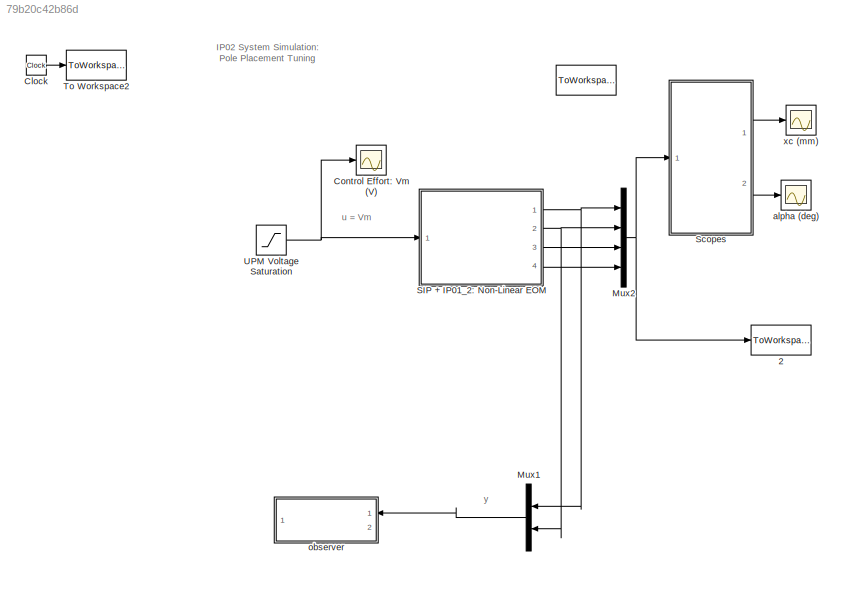
MODEL slx_79b20c42b86d
KIND model
CONFIG AbsTol = 1e-6
CONFIG FixedStep = 0.001
CONFIG MaxStep = auto
CONFIG MinStep = auto
CONFIG RelTol = 1e-3
CONFIG SampleTimeConstraint = Unconstrained
CONFIG Solver = ode4
CONFIG SolverMode = SingleTasking
CONFIG SolverName = ode4
CONFIG StartTime = 0.0
CONFIG StopTime = 40
BLOCK [ToWorkspace]  
  MaxDataPoints = inf
  Ports = [1]
  SampleTime = -1
  VariableName = ref
BLOCK [ToWorkspace]  2
  MaxDataPoints = inf
  Ports = [1]
  SampleTime = -1
  VariableName = x
BLOCK [Clock] Clock
BLOCK [Scope] Control Effort: Vm (V)
  Ports = [1]
  ScopeSpecificationString = C++SS(StrPVP('Location','[7, 56, 784, 588]'),StrPVP('Open','off'),StrPVP('TickLabels','on'),MxPVP('AxesTitles',24,'struct(''axes1'',''%<SignalLabel>'')'),StrPVP('ShowLegends','off'),StrPVP('TimeRange','5'),StrPVP('YMin','-35'),StrPVP('YMax','35'),StrPVP('SaveName','ScopeData2'),StrPVP('LimitDataPoints','off'),StrPVP('BlockParamSampleTime','0'),StrPVP('DataFormat','Array'),StrPVP('Decimation','1'),...<+38ch>
BLOCK [Mux] Mux1
  DisplayOption = bar
  Inputs = 2
  Ports = [2, 1]
BLOCK [Mux] Mux2
  DisplayOption = bar
  Ports = [4, 1]
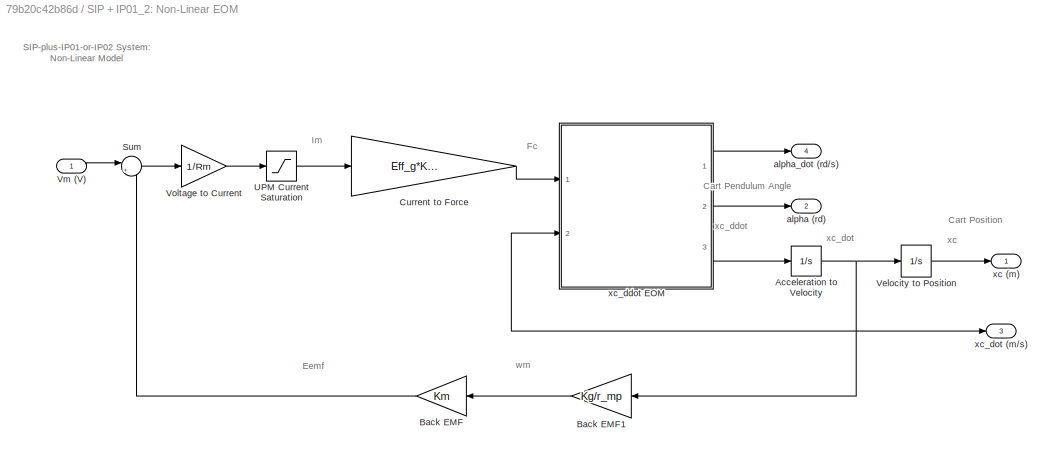
BLOCK [SubSystem] SIP + IP01_2: Non-Linear EOM
  Ports = [1, 4]
  RequestExecContextInheritance = off
  Variant = off
BLOCK [Integrator] SIP + IP01_2: Non-Linear EOM/Acceleration to Velocity
  Ports = [1, 1]
BLOCK [Gain] SIP + IP01_2: Non-Linear EOM/Back EMF
  Gain = Km
BLOCK [Gain] SIP + IP01_2: Non-Linear EOM/Back EMF1
  Gain = Kg/r_mp
BLOCK [Gain] SIP + IP01_2: Non-Linear EOM/Current to Force
  Gain = Eff_g*Kg*Eff_m*Kt/r_mp
BLOCK [Sum] SIP + IP01_2: Non-Linear EOM/Sum
  IconShape = round
  Inputs = |+-
  Ports = [2, 1]
BLOCK [Saturate] SIP + IP01_2: Non-Linear EOM/UPM Current Saturation 
  InputPortMap = u0
  LowerLimit = - IMAX_UPM
  Ports = [1, 1]
  UpperLimit = IMAX_UPM
BLOCK [Integrator] SIP + IP01_2: Non-Linear EOM/Velocity to Position
  Ports = [1, 1]
BLOCK [Inport] SIP + IP01_2: Non-Linear EOM/Vm (V)
  IconDisplay = Port number
BLOCK [Gain] SIP + IP01_2: Non-Linear EOM/Voltage to Current
  Gain = 1/Rm
BLOCK [Outport] SIP + IP01_2: Non-Linear EOM/alpha (rd)
  IconDisplay = Port number
  Port = 2
BLOCK [Outport] SIP + IP01_2: Non-Linear EOM/alpha_dot (rd//s)
  IconDisplay = Port number
  InitialOutput = 0
  Port = 4
BLOCK [Outport] SIP + IP01_2: Non-Linear EOM/xc (m)
  IconDisplay = Port number
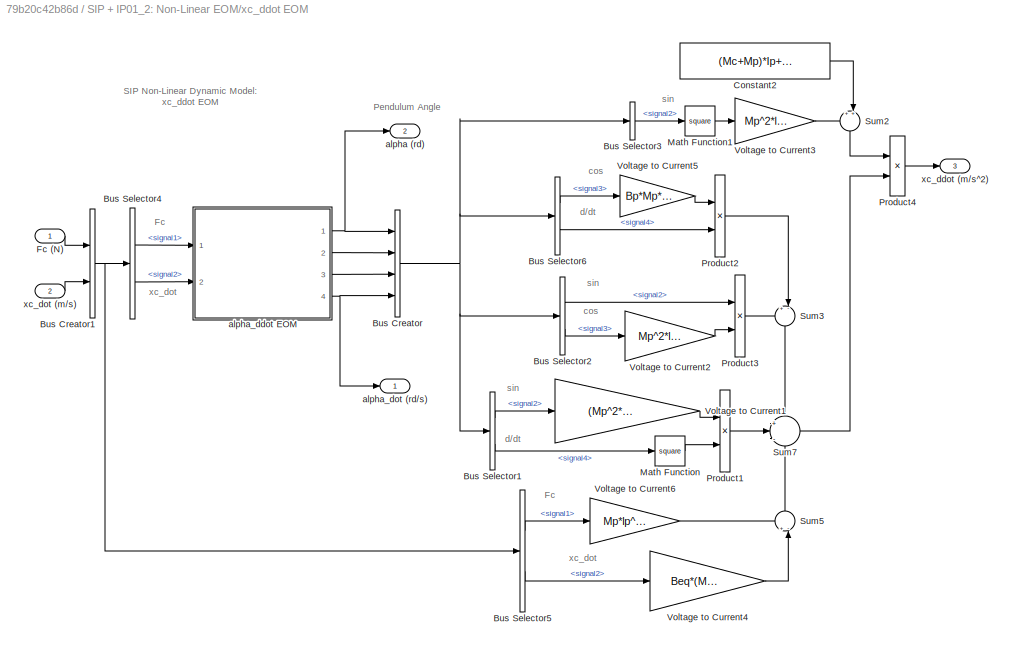
BLOCK [SubSystem] SIP + IP01_2: Non-Linear EOM/xc_ddot EOM
  Ports = [2, 3]
  RequestExecContextInheritance = off
  Variant = off
BLOCK [BusCreator] SIP + IP01_2: Non-Linear EOM/xc_ddot EOM/Bus Creator
  DialogController = Simulink.DDGSource_Bus
  DisplayOption = bar
  InheritFromInputs = on
  Inputs = 4
  Ports = [4, 1]
BLOCK [BusCreator] SIP + IP01_2: Non-Linear EOM/xc_ddot EOM/Bus Creator1
  DialogController = Simulink.DDGSource_Bus
  DisplayOption = bar
  InheritFromInputs = on
  Inputs = 2
  Ports = [2, 1]
BLOCK [BusSelector] SIP + IP01_2: Non-Linear EOM/xc_ddot EOM/Bus Selector1
  DialogController = Simulink.DDGSource_Bus
  OutputSignals = signal2,signal4
  Ports = [1, 2]
BLOCK [BusSelector] SIP + IP01_2: Non-Linear EOM/xc_ddot EOM/Bus Selector2
  DialogController = Simulink.DDGSource_Bus
  OutputSignals = signal2,signal3
  Ports = [1, 2]
BLOCK [BusSelector] SIP + IP01_2: Non-Linear EOM/xc_ddot EOM/Bus Selector3
  DialogController = Simulink.DDGSource_Bus
  OutputSignals = signal2
  Ports = [1, 1]
BLOCK [BusSelector] SIP + IP01_2: Non-Linear EOM/xc_ddot EOM/Bus Selector4
  DialogController = Simulink.DDGSource_Bus
  OutputSignals = signal1,signal2
  Ports = [1, 2]
BLOCK [BusSelector] SIP + IP01_2: Non-Linear EOM/xc_ddot EOM/Bus Selector5
  DialogController = Simulink.DDGSource_Bus
  OutputSignals = signal1,signal2
  Ports = [1, 2]
BLOCK [BusSelector] SIP + IP01_2: Non-Linear EOM/xc_ddot EOM/Bus Selector6
  DialogController = Simulink.DDGSource_Bus
  OutputSignals = signal3,signal4
  Ports = [1, 2]
BLOCK [Constant] SIP + IP01_2: Non-Linear EOM/xc_ddot EOM/Constant2
  Value = (Mc+Mp)*Ip+Mc*Mp*lp^2
BLOCK [Inport] SIP + IP01_2: Non-Linear EOM/xc_ddot EOM/Fc (N)
  IconDisplay = Port number
BLOCK [Math] SIP + IP01_2: Non-Linear EOM/xc_ddot EOM/Math Function
  Operator = square
  Ports = [1, 1]
BLOCK [Math] SIP + IP01_2: Non-Linear EOM/xc_ddot EOM/Math Function1
  Operator = square
  Ports = [1, 1]
BLOCK [Product] SIP + IP01_2: Non-Linear EOM/xc_ddot EOM/Product1
  Ports = [2, 1]
BLOCK [Product] SIP + IP01_2: Non-Linear EOM/xc_ddot EOM/Product2
  Ports = [2, 1]
BLOCK [Product] SIP + IP01_2: Non-Linear EOM/xc_ddot EOM/Product3
  Ports = [2, 1]
BLOCK [Product] SIP + IP01_2: Non-Linear EOM/xc_ddot EOM/Product4
  Inputs = /*
  Ports = [2, 1]
BLOCK [Sum] SIP + IP01_2: Non-Linear EOM/xc_ddot EOM/Sum2
  IconShape = round
  Inputs = ++|
  Ports = [2, 1]
BLOCK [Sum] SIP + IP01_2: Non-Linear EOM/xc_ddot EOM/Sum3
  IconShape = round
  Inputs = +-|
  Ports = [2, 1]
BLOCK [Sum] SIP + IP01_2: Non-Linear EOM/xc_ddot EOM/Sum5
  IconShape = round
  Inputs = +-|
  Ports = [2, 1]
BLOCK [Sum] SIP + IP01_2: Non-Linear EOM/xc_ddot EOM/Sum7
  IconShape = round
  Inputs = +|-|+
  Ports = [3, 1]
BLOCK [Gain] SIP + IP01_2: Non-Linear EOM/xc_ddot EOM/Voltage to Current1
  Gain = (Mp^2*lp^3+Ip*Mp*lp)
BLOCK [Gain] SIP + IP01_2: Non-Linear EOM/xc_ddot EOM/Voltage to Current2
  Gain = Mp^2*lp^2*g
BLOCK [Gain] SIP + IP01_2: Non-Linear EOM/xc_ddot EOM/Voltage to Current3
  Gain = Mp^2*lp^2
BLOCK [Gain] SIP + IP01_2: Non-Linear EOM/xc_ddot EOM/Voltage to Current4
  Gain = Beq*(Mp*lp^2+Ip)
BLOCK [Gain] SIP + IP01_2: Non-Linear EOM/xc_ddot EOM/Voltage to Current5
  Gain = Bp*Mp*lp
BLOCK [Gain] SIP + IP01_2: Non-Linear EOM/xc_ddot EOM/Voltage to Current6
  Gain = Mp*lp^2+Ip
BLOCK [Outport] SIP + IP01_2: Non-Linear EOM/xc_ddot EOM/alpha (rd)
  IconDisplay = Port number
  Port = 2
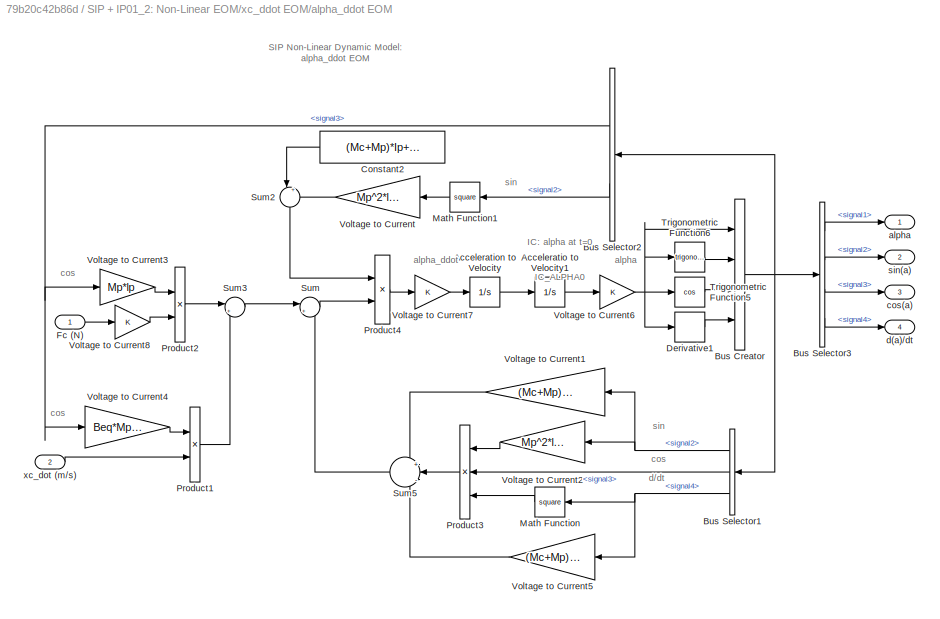
BLOCK [SubSystem] SIP + IP01_2: Non-Linear EOM/xc_ddot EOM/alpha_ddot EOM
  Ports = [2, 4]
  RequestExecContextInheritance = off
  Variant = off
BLOCK [Integrator] SIP + IP01_2: Non-Linear EOM/xc_ddot EOM/alpha_ddot EOM/Acceleratio to Velocity1
  InitialCondition = theta0
  Ports = [1, 1]
BLOCK [Integrator] SIP + IP01_2: Non-Linear EOM/xc_ddot EOM/alpha_ddot EOM/Acceleration to Velocity
  Ports = [1, 1]
BLOCK [BusCreator] SIP + IP01_2: Non-Linear EOM/xc_ddot EOM/alpha_ddot EOM/Bus Creator
  DialogController = Simulink.DDGSource_Bus
  DisplayOption = bar
  InheritFromInputs = on
  Inputs = 4
  Ports = [4, 1]
BLOCK [BusSelector] SIP + IP01_2: Non-Linear EOM/xc_ddot EOM/alpha_ddot EOM/Bus Selector1
  DialogController = Simulink.DDGSource_Bus
  OutputSignals = signal2,signal3,signal4
  Ports = [1, 3]
BLOCK [BusSelector] SIP + IP01_2: Non-Linear EOM/xc_ddot EOM/alpha_ddot EOM/Bus Selector2
  DialogController = Simulink.DDGSource_Bus
  OutputSignals = signal3,signal2
  Ports = [1, 2]
BLOCK [BusSelector] SIP + IP01_2: Non-Linear EOM/xc_ddot EOM/alpha_ddot EOM/Bus Selector3
  DialogController = Simulink.DDGSource_Bus
  OutputSignals = signal1,signal2,signal3,signal4
  Ports = [1, 4]
BLOCK [Constant] SIP + IP01_2: Non-Linear EOM/xc_ddot EOM/alpha_ddot EOM/Constant2
  Value = (Mc+Mp)*Ip+Mc*Mp*lp^2
BLOCK [Derivative] SIP + IP01_2: Non-Linear EOM/xc_ddot EOM/alpha_ddot EOM/Derivative1
BLOCK [Inport] SIP + IP01_2: Non-Linear EOM/xc_ddot EOM/alpha_ddot EOM/Fc (N)
  IconDisplay = Port number
BLOCK [Math] SIP + IP01_2: Non-Linear EOM/xc_ddot EOM/alpha_ddot EOM/Math Function
  Operator = square
  Ports = [1, 1]
BLOCK [Math] SIP + IP01_2: Non-Linear EOM/xc_ddot EOM/alpha_ddot EOM/Math Function1
  Operator = square
  Ports = [1, 1]
BLOCK [Product] SIP + IP01_2: Non-Linear EOM/xc_ddot EOM/alpha_ddot EOM/Product1
  Ports = [2, 1]
BLOCK [Product] SIP + IP01_2: Non-Linear EOM/xc_ddot EOM/alpha_ddot EOM/Product2
  Ports = [2, 1]
BLOCK [Product] SIP + IP01_2: Non-Linear EOM/xc_ddot EOM/alpha_ddot EOM/Product3
  Inputs = 3
  Ports = [3, 1]
BLOCK [Product] SIP + IP01_2: Non-Linear EOM/xc_ddot EOM/alpha_ddot EOM/Product4
  Inputs = /*
  Ports = [2, 1]
BLOCK [Sum] SIP + IP01_2: Non-Linear EOM/xc_ddot EOM/alpha_ddot EOM/Sum
  IconShape = round
  Inputs = |++
  Ports = [2, 1]
BLOCK [Sum] SIP + IP01_2: Non-Linear EOM/xc_ddot EOM/alpha_ddot EOM/Sum2
  IconShape = round
  Inputs = |++
  Ports = [2, 1]
BLOCK [Sum] SIP + IP01_2: Non-Linear EOM/xc_ddot EOM/alpha_ddot EOM/Sum3
  IconShape = round
  Inputs = |+-
  Ports = [2, 1]
BLOCK [Sum] SIP + IP01_2: Non-Linear EOM/xc_ddot EOM/alpha_ddot EOM/Sum5
  IconShape = round
  Inputs = +|-|-
  Ports = [3, 1]
BLOCK [Trigonometry] SIP + IP01_2: Non-Linear EOM/xc_ddot EOM/alpha_ddot EOM/Trigonometric Function5
  Operator = cos
  Ports = [1, 1]
BLOCK [Trigonometry] SIP + IP01_2: Non-Linear EOM/xc_ddot EOM/alpha_ddot EOM/Trigonometric Function6
  Ports = [1, 1]
BLOCK [Gain] SIP + IP01_2: Non-Linear EOM/xc_ddot EOM/alpha_ddot EOM/Voltage to Current
  Gain = Mp^2*lp^2
BLOCK [Gain] SIP + IP01_2: Non-Linear EOM/xc_ddot EOM/alpha_ddot EOM/Voltage to Current1
  Gain = (Mc+Mp)*Mp*lp*g
BLOCK [Gain] SIP + IP01_2: Non-Linear EOM/xc_ddot EOM/alpha_ddot EOM/Voltage to Current2
  Gain = Mp^2*lp^2
BLOCK [Gain] SIP + IP01_2: Non-Linear EOM/xc_ddot EOM/alpha_ddot EOM/Voltage to Current3
  Gain = Mp*lp
BLOCK [Gain] SIP + IP01_2: Non-Linear EOM/xc_ddot EOM/alpha_ddot EOM/Voltage to Current4
  Gain = Beq*Mp*lp
BLOCK [Gain] SIP + IP01_2: Non-Linear EOM/xc_ddot EOM/alpha_ddot EOM/Voltage to Current5
  Gain = (Mc+Mp)*Bp
BLOCK [Gain] SIP + IP01_2: Non-Linear EOM/xc_ddot EOM/alpha_ddot EOM/Voltage to Current6
BLOCK [Gain] SIP + IP01_2: Non-Linear EOM/xc_ddot EOM/alpha_ddot EOM/Voltage to Current7
BLOCK [Gain] SIP + IP01_2: Non-Linear EOM/xc_ddot EOM/alpha_ddot EOM/Voltage to Current8
BLOCK [Outport] SIP + IP01_2: Non-Linear EOM/xc_ddot EOM/alpha_ddot EOM/alpha
  IconDisplay = Port number
  InitialOutput = 0
BLOCK [Outport] SIP + IP01_2: Non-Linear EOM/xc_ddot EOM/alpha_ddot EOM/cos(a)
  IconDisplay = Port number
  InitialOutput = 0
  Port = 3
BLOCK [Outport] SIP + IP01_2: Non-Linear EOM/xc_ddot EOM/alpha_ddot EOM/d(a)//dt
  IconDisplay = Port number
  InitialOutput = 0
  Port = 4
BLOCK [Outport] SIP + IP01_2: Non-Linear EOM/xc_ddot EOM/alpha_ddot EOM/sin(a)
  IconDisplay = Port number
  InitialOutput = 0
  Port = 2
BLOCK [Inport] SIP + IP01_2: Non-Linear EOM/xc_ddot EOM/alpha_ddot EOM/xc_dot (m//s)
  IconDisplay = Port number
  Port = 2
BLOCK [Outport] SIP + IP01_2: Non-Linear EOM/xc_ddot EOM/alpha_dot (rd//s)
  IconDisplay = Port number
BLOCK [Outport] SIP + IP01_2: Non-Linear EOM/xc_ddot EOM/xc_ddot (m//s^2)
  IconDisplay = Port number
  Port = 3
BLOCK [Inport] SIP + IP01_2: Non-Linear EOM/xc_ddot EOM/xc_dot (m//s)
  IconDisplay = Port number
  Port = 2
BLOCK [Outport] SIP + IP01_2: Non-Linear EOM/xc_dot (m//s)
  IconDisplay = Port number
  InitialOutput = 0
  Port = 3
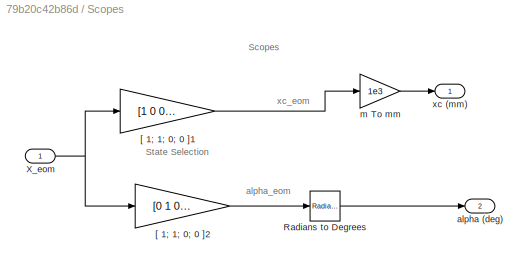
BLOCK [SubSystem] Scopes
  Ports = [1, 2]
  RequestExecContextInheritance = off
  Variant = off
BLOCK [Reference] Scopes/Radians to Degrees  REF=simulink_extras/Transformations/Radians
to Degrees
  Ports = [1, 1]
  SourceBlock = simulink_extras/Transformations/Radians\nto Degrees
  SourceType = RadiansToDegrees
BLOCK [Inport] Scopes/X_eom
  IconDisplay = Port number
BLOCK [Gain] Scopes/[ 1; 1; 0; 0 ]1
  Gain = [1 0 0 0]
  Multiplication = Matrix(K*u)
BLOCK [Gain] Scopes/[ 1; 1; 0; 0 ]2
  Gain = [0 1 0 0]
  Multiplication = Matrix(K*u)
BLOCK [Outport] Scopes/alpha (deg)
  IconDisplay = Port number
  Port = 2
BLOCK [Gain] Scopes/m To mm
  Gain = 1e3
BLOCK [Outport] Scopes/xc (mm)
  IconDisplay = Port number
BLOCK [ToWorkspace] To Workspace2
  MaxDataPoints = inf
  Ports = [1]
  SampleTime = -1
  VariableName = t
BLOCK [Saturate] UPM Voltage Saturation
  InputPortMap = u0
  LowerLimit = - VMAX_UPM
  Ports = [1, 1]
  UpperLimit = VMAX_UPM
BLOCK [Scope] alpha (deg)
  Ports = [1]
  ScopeSpecificationString = C++SS(StrPVP('Location','[112, 210, 889, 742]'),StrPVP('Open','off'),StrPVP('TickLabels','on'),StrPVP('ZoomMode','xonly'),MxPVP('AxesTitles',24,'struct(''axes1'',''%<SignalLabel>'')'),StrPVP('ShowLegends','off'),StrPVP('TimeRange','5'),StrPVP('YMin','-1'),StrPVP('YMax','1'),StrPVP('SaveName','ScopeData4'),StrPVP('LimitDataPoints','off'),StrPVP('BlockParamSampleTime','0'),StrPVP('DataFormat','Array...<+66ch>
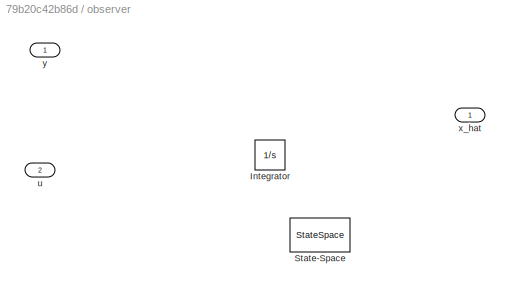
BLOCK [SubSystem] observer
  Ports = [2, 1]
  RequestExecContextInheritance = off
  Variant = off
BLOCK [Integrator] observer/Integrator
  Ports = [1, 1]
BLOCK [StateSpace] observer/State-Space
  Ports = [1, 1]
  X0 = 0
BLOCK [Inport] observer/u
  IconDisplay = Port number
  Port = 2
BLOCK [Outport] observer/x_hat
  IconDisplay = Port number
BLOCK [Inport] observer/y
  IconDisplay = Port number
BLOCK [Scope] xc (mm)
  Ports = [1]
  ScopeSpecificationString = C++SS(StrPVP('Location','[51, 126, 828, 658]'),StrPVP('Open','off'),StrPVP('TickLabels','on'),StrPVP('ZoomMode','yonly'),MxPVP('AxesTitles',24,'struct(''axes1'',''%<SignalLabel>'')'),StrPVP('ShowLegends','off'),StrPVP('TimeRange','5'),StrPVP('YMin','-125'),StrPVP('YMax','150'),StrPVP('SaveName','ScopeData3'),StrPVP('LimitDataPoints','off'),StrPVP('BlockParamSampleTime','0'),StrPVP('DataFormat','Ar...<+69ch>
ANNOTATION (root): IP02 System Simulation: Pole Placement Tuning
ANNOTATION (root): u = Vm
ANNOTATION (root): y
ANNOTATION SIP + IP01_2: Non-Linear EOM: Cart Pendulum Angle
ANNOTATION SIP + IP01_2: Non-Linear EOM: Cart Position
ANNOTATION SIP + IP01_2: Non-Linear EOM: Eemf
ANNOTATION SIP + IP01_2: Non-Linear EOM: Fc
ANNOTATION SIP + IP01_2: Non-Linear EOM: Im
ANNOTATION SIP + IP01_2: Non-Linear EOM: SIP-plus-IP01-or-IP02 System: Non-Linear Model
ANNOTATION SIP + IP01_2: Non-Linear EOM: wm
ANNOTATION SIP + IP01_2: Non-Linear EOM: xc
ANNOTATION SIP + IP01_2: Non-Linear EOM: xc_ddot
ANNOTATION SIP + IP01_2: Non-Linear EOM: xc_dot
ANNOTATION SIP + IP01_2: Non-Linear EOM/xc_ddot EOM: Fc
ANNOTATION SIP + IP01_2: Non-Linear EOM/xc_ddot EOM: Pendulum Angle
ANNOTATION SIP + IP01_2: Non-Linear EOM/xc_ddot EOM: SIP Non-Linear Dynamic Model: xc_ddot EOM
ANNOTATION SIP + IP01_2: Non-Linear EOM/xc_ddot EOM: cos
ANNOTATION SIP + IP01_2: Non-Linear EOM/xc_ddot EOM: d/dt
ANNOTATION SIP + IP01_2: Non-Linear EOM/xc_ddot EOM: sin
ANNOTATION SIP + IP01_2: Non-Linear EOM/xc_ddot EOM: xc_dot
ANNOTATION SIP + IP01_2: Non-Linear EOM/xc_ddot EOM/alpha_ddot EOM: IC: alpha at t=0 IC_ALPHA0
ANNOTATION SIP + IP01_2: Non-Linear EOM/xc_ddot EOM/alpha_ddot EOM: SIP Non-Linear Dynamic Model: alpha_ddot EOM
ANNOTATION SIP + IP01_2: Non-Linear EOM/xc_ddot EOM/alpha_ddot EOM: alpha
ANNOTATION SIP + IP01_2: Non-Linear EOM/xc_ddot EOM/alpha_ddot EOM: alpha_ddot
ANNOTATION SIP + IP01_2: Non-Linear EOM/xc_ddot EOM/alpha_ddot EOM: cos
ANNOTATION SIP + IP01_2: Non-Linear EOM/xc_ddot EOM/alpha_ddot EOM: d/dt
ANNOTATION SIP + IP01_2: Non-Linear EOM/xc_ddot EOM/alpha_ddot EOM: sin
ANNOTATION Scopes: Scopes
ANNOTATION Scopes: State Selection
ANNOTATION Scopes: alpha_eom
ANNOTATION Scopes: xc_eom
LINE Clock:1 -> To Workspace2:1
LINE Mux1:1 -> observer:1
NET Mux2:1 ->  2:1, Scopes:1
NET SIP + IP01_2: Non-Linear EOM/Acceleration to Velocity:1 -> SIP + IP01_2: Non-Linear EOM/Back EMF1:1, SIP + IP01_2: Non-Linear EOM/Velocity to Position:1, SIP + IP01_2: Non-Linear EOM/xc_ddot EOM:2, SIP + IP01_2: Non-Linear EOM/xc_dot (m//s):1
LINE SIP + IP01_2: Non-Linear EOM/Back EMF1:1 -> SIP + IP01_2: Non-Linear EOM/Back EMF:1
LINE SIP + IP01_2: Non-Linear EOM/Back EMF:1 -> SIP + IP01_2: Non-Linear EOM/Sum:2
LINE SIP + IP01_2: Non-Linear EOM/Current to Force:1 -> SIP + IP01_2: Non-Linear EOM/xc_ddot EOM:1
LINE SIP + IP01_2: Non-Linear EOM/Sum:1 -> SIP + IP01_2: Non-Linear EOM/Voltage to Current:1
LINE SIP + IP01_2: Non-Linear EOM/UPM Current Saturation :1 -> SIP + IP01_2: Non-Linear EOM/Current to Force:1
LINE SIP + IP01_2: Non-Linear EOM/Velocity to Position:1 -> SIP + IP01_2: Non-Linear EOM/xc (m):1
LINE SIP + IP01_2: Non-Linear EOM/Vm (V):1 -> SIP + IP01_2: Non-Linear EOM/Sum:1
LINE SIP + IP01_2: Non-Linear EOM/Voltage to Current:1 -> SIP + IP01_2: Non-Linear EOM/UPM Current Saturation :1
NET SIP + IP01_2: Non-Linear EOM/xc_ddot EOM/Bus Creator1:1 -> SIP + IP01_2: Non-Linear EOM/xc_ddot EOM/Bus Selector4:1, SIP + IP01_2: Non-Linear EOM/xc_ddot EOM/Bus Selector5:1
NET SIP + IP01_2: Non-Linear EOM/xc_ddot EOM/Bus Creator:1 -> SIP + IP01_2: Non-Linear EOM/xc_ddot EOM/Bus Selector1:1, SIP + IP01_2: Non-Linear EOM/xc_ddot EOM/Bus Selector2:1, SIP + IP01_2: Non-Linear EOM/xc_ddot EOM/Bus Selector3:1, SIP + IP01_2: Non-Linear EOM/xc_ddot EOM/Bus Selector6:1
LINE SIP + IP01_2: Non-Linear EOM/xc_ddot EOM/Bus Selector1:1 -> SIP + IP01_2: Non-Linear EOM/xc_ddot EOM/Voltage to Current1:1
LINE SIP + IP01_2: Non-Linear EOM/xc_ddot EOM/Bus Selector1:2 -> SIP + IP01_2: Non-Linear EOM/xc_ddot EOM/Math Function:1
LINE SIP + IP01_2: Non-Linear EOM/xc_ddot EOM/Bus Selector2:1 -> SIP + IP01_2: Non-Linear EOM/xc_ddot EOM/Product3:1
LINE SIP + IP01_2: Non-Linear EOM/xc_ddot EOM/Bus Selector2:2 -> SIP + IP01_2: Non-Linear EOM/xc_ddot EOM/Voltage to Current2:1
LINE SIP + IP01_2: Non-Linear EOM/xc_ddot EOM/Bus Selector3:1 -> SIP + IP01_2: Non-Linear EOM/xc_ddot EOM/Math Function1:1
LINE SIP + IP01_2: Non-Linear EOM/xc_ddot EOM/Bus Selector4:1 -> SIP + IP01_2: Non-Linear EOM/xc_ddot EOM/alpha_ddot EOM:1
LINE SIP + IP01_2: Non-Linear EOM/xc_ddot EOM/Bus Selector4:2 -> SIP + IP01_2: Non-Linear EOM/xc_ddot EOM/alpha_ddot EOM:2
LINE SIP + IP01_2: Non-Linear EOM/xc_ddot EOM/Bus Selector5:1 -> SIP + IP01_2: Non-Linear EOM/xc_ddot EOM/Voltage to Current6:1
LINE SIP + IP01_2: Non-Linear EOM/xc_ddot EOM/Bus Selector5:2 -> SIP + IP01_2: Non-Linear EOM/xc_ddot EOM/Voltage to Current4:1
LINE SIP + IP01_2: Non-Linear EOM/xc_ddot EOM/Bus Selector6:1 -> SIP + IP01_2: Non-Linear EOM/xc_ddot EOM/Voltage to Current5:1
LINE SIP + IP01_2: Non-Linear EOM/xc_ddot EOM/Bus Selector6:2 -> SIP + IP01_2: Non-Linear EOM/xc_ddot EOM/Product2:2
LINE SIP + IP01_2: Non-Linear EOM/xc_ddot EOM/Constant2:1 -> SIP + IP01_2: Non-Linear EOM/xc_ddot EOM/Sum2:2
LINE SIP + IP01_2: Non-Linear EOM/xc_ddot EOM/Fc (N):1 -> SIP + IP01_2: Non-Linear EOM/xc_ddot EOM/Bus Creator1:1
LINE SIP + IP01_2: Non-Linear EOM/xc_ddot EOM/Math Function1:1 -> SIP + IP01_2: Non-Linear EOM/xc_ddot EOM/Voltage to Current3:1
LINE SIP + IP01_2: Non-Linear EOM/xc_ddot EOM/Math Function:1 -> SIP + IP01_2: Non-Linear EOM/xc_ddot EOM/Product1:2
LINE SIP + IP01_2: Non-Linear EOM/xc_ddot EOM/Product1:1 -> SIP + IP01_2: Non-Linear EOM/xc_ddot EOM/Sum7:2
LINE SIP + IP01_2: Non-Linear EOM/xc_ddot EOM/Product2:1 -> SIP + IP01_2: Non-Linear EOM/xc_ddot EOM/Sum3:2
LINE SIP + IP01_2: Non-Linear EOM/xc_ddot EOM/Product3:1 -> SIP + IP01_2: Non-Linear EOM/xc_ddot EOM/Sum3:1
LINE SIP + IP01_2: Non-Linear EOM/xc_ddot EOM/Product4:1 -> SIP + IP01_2: Non-Linear EOM/xc_ddot EOM/xc_ddot (m//s^2):1
LINE SIP + IP01_2: Non-Linear EOM/xc_ddot EOM/Sum2:1 -> SIP + IP01_2: Non-Linear EOM/xc_ddot EOM/Product4:1
LINE SIP + IP01_2: Non-Linear EOM/xc_ddot EOM/Sum3:1 -> SIP + IP01_2: Non-Linear EOM/xc_ddot EOM/Sum7:1
LINE SIP + IP01_2: Non-Linear EOM/xc_ddot EOM/Sum5:1 -> SIP + IP01_2: Non-Linear EOM/xc_ddot EOM/Sum7:3
LINE SIP + IP01_2: Non-Linear EOM/xc_ddot EOM/Sum7:1 -> SIP + IP01_2: Non-Linear EOM/xc_ddot EOM/Product4:2
LINE SIP + IP01_2: Non-Linear EOM/xc_ddot EOM/Voltage to Current1:1 -> SIP + IP01_2: Non-Linear EOM/xc_ddot EOM/Product1:1
LINE SIP + IP01_2: Non-Linear EOM/xc_ddot EOM/Voltage to Current2:1 -> SIP + IP01_2: Non-Linear EOM/xc_ddot EOM/Product3:2
LINE SIP + IP01_2: Non-Linear EOM/xc_ddot EOM/Voltage to Current3:1 -> SIP + IP01_2: Non-Linear EOM/xc_ddot EOM/Sum2:1
LINE SIP + IP01_2: Non-Linear EOM/xc_ddot EOM/Voltage to Current4:1 -> SIP + IP01_2: Non-Linear EOM/xc_ddot EOM/Sum5:2
LINE SIP + IP01_2: Non-Linear EOM/xc_ddot EOM/Voltage to Current5:1 -> SIP + IP01_2: Non-Linear EOM/xc_ddot EOM/Product2:1
LINE SIP + IP01_2: Non-Linear EOM/xc_ddot EOM/Voltage to Current6:1 -> SIP + IP01_2: Non-Linear EOM/xc_ddot EOM/Sum5:1
LINE SIP + IP01_2: Non-Linear EOM/xc_ddot EOM/alpha_ddot EOM/Acceleratio to Velocity1:1 -> SIP + IP01_2: Non-Linear EOM/xc_ddot EOM/alpha_ddot EOM/Voltage to Current6:1
LINE SIP + IP01_2: Non-Linear EOM/xc_ddot EOM/alpha_ddot EOM/Acceleration to Velocity:1 -> SIP + IP01_2: Non-Linear EOM/xc_ddot EOM/alpha_ddot EOM/Acceleratio to Velocity1:1
NET SIP + IP01_2: Non-Linear EOM/xc_ddot EOM/alpha_ddot EOM/Bus Creator:1 -> SIP + IP01_2: Non-Linear EOM/xc_ddot EOM/alpha_ddot EOM/Bus Selector1:1, SIP + IP01_2: Non-Linear EOM/xc_ddot EOM/alpha_ddot EOM/Bus Selector2:1, SIP + IP01_2: Non-Linear EOM/xc_ddot EOM/alpha_ddot EOM/Bus Selector3:1
NET SIP + IP01_2: Non-Linear EOM/xc_ddot EOM/alpha_ddot EOM/Bus Selector1:1 -> SIP + IP01_2: Non-Linear EOM/xc_ddot EOM/alpha_ddot EOM/Voltage to Current1:1, SIP + IP01_2: Non-Linear EOM/xc_ddot EOM/alpha_ddot EOM/Voltage to Current2:1
LINE SIP + IP01_2: Non-Linear EOM/xc_ddot EOM/alpha_ddot EOM/Bus Selector1:2 -> SIP + IP01_2: Non-Linear EOM/xc_ddot EOM/alpha_ddot EOM/Product3:2
NET SIP + IP01_2: Non-Linear EOM/xc_ddot EOM/alpha_ddot EOM/Bus Selector1:3 -> SIP + IP01_2: Non-Linear EOM/xc_ddot EOM/alpha_ddot EOM/Math Function:1, SIP + IP01_2: Non-Linear EOM/xc_ddot EOM/alpha_ddot EOM/Voltage to Current5:1
NET SIP + IP01_2: Non-Linear EOM/xc_ddot EOM/alpha_ddot EOM/Bus Selector2:1 -> SIP + IP01_2: Non-Linear EOM/xc_ddot EOM/alpha_ddot EOM/Voltage to Current3:1, SIP + IP01_2: Non-Linear EOM/xc_ddot EOM/alpha_ddot EOM/Voltage to Current4:1
LINE SIP + IP01_2: Non-Linear EOM/xc_ddot EOM/alpha_ddot EOM/Bus Selector2:2 -> SIP + IP01_2: Non-Linear EOM/xc_ddot EOM/alpha_ddot EOM/Math Function1:1
LINE SIP + IP01_2: Non-Linear EOM/xc_ddot EOM/alpha_ddot EOM/Bus Selector3:1 -> SIP + IP01_2: Non-Linear EOM/xc_ddot EOM/alpha_ddot EOM/alpha:1
LINE SIP + IP01_2: Non-Linear EOM/xc_ddot EOM/alpha_ddot EOM/Bus Selector3:2 -> SIP + IP01_2: Non-Linear EOM/xc_ddot EOM/alpha_ddot EOM/sin(a):1
LINE SIP + IP01_2: Non-Linear EOM/xc_ddot EOM/alpha_ddot EOM/Bus Selector3:3 -> SIP + IP01_2: Non-Linear EOM/xc_ddot EOM/alpha_ddot EOM/cos(a):1
LINE SIP + IP01_2: Non-Linear EOM/xc_ddot EOM/alpha_ddot EOM/Bus Selector3:4 -> SIP + IP01_2: Non-Linear EOM/xc_ddot EOM/alpha_ddot EOM/d(a)//dt:1
LINE SIP + IP01_2: Non-Linear EOM/xc_ddot EOM/alpha_ddot EOM/Constant2:1 -> SIP + IP01_2: Non-Linear EOM/xc_ddot EOM/alpha_ddot EOM/Sum2:1
LINE SIP + IP01_2: Non-Linear EOM/xc_ddot EOM/alpha_ddot EOM/Derivative1:1 -> SIP + IP01_2: Non-Linear EOM/xc_ddot EOM/alpha_ddot EOM/Bus Creator:4
LINE SIP + IP01_2: Non-Linear EOM/xc_ddot EOM/alpha_ddot EOM/Fc (N):1 -> SIP + IP01_2: Non-Linear EOM/xc_ddot EOM/alpha_ddot EOM/Voltage to Current8:1
LINE SIP + IP01_2: Non-Linear EOM/xc_ddot EOM/alpha_ddot EOM/Math Function1:1 -> SIP + IP01_2: Non-Linear EOM/xc_ddot EOM/alpha_ddot EOM/Voltage to Current:1
LINE SIP + IP01_2: Non-Linear EOM/xc_ddot EOM/alpha_ddot EOM/Math Function:1 -> SIP + IP01_2: Non-Linear EOM/xc_ddot EOM/alpha_ddot EOM/Product3:3
LINE SIP + IP01_2: Non-Linear EOM/xc_ddot EOM/alpha_ddot EOM/Product1:1 -> SIP + IP01_2: Non-Linear EOM/xc_ddot EOM/alpha_ddot EOM/Sum3:2
LINE SIP + IP01_2: Non-Linear EOM/xc_ddot EOM/alpha_ddot EOM/Product2:1 -> SIP + IP01_2: Non-Linear EOM/xc_ddot EOM/alpha_ddot EOM/Sum3:1
LINE SIP + IP01_2: Non-Linear EOM/xc_ddot EOM/alpha_ddot EOM/Product3:1 -> SIP + IP01_2: Non-Linear EOM/xc_ddot EOM/alpha_ddot EOM/Sum5:2
LINE SIP + IP01_2: Non-Linear EOM/xc_ddot EOM/alpha_ddot EOM/Product4:1 -> SIP + IP01_2: Non-Linear EOM/xc_ddot EOM/alpha_ddot EOM/Voltage to Current7:1
LINE SIP + IP01_2: Non-Linear EOM/xc_ddot EOM/alpha_ddot EOM/Sum2:1 -> SIP + IP01_2: Non-Linear EOM/xc_ddot EOM/alpha_ddot EOM/Product4:1
LINE SIP + IP01_2: Non-Linear EOM/xc_ddot EOM/alpha_ddot EOM/Sum3:1 -> SIP + IP01_2: Non-Linear EOM/xc_ddot EOM/alpha_ddot EOM/Sum:1
LINE SIP + IP01_2: Non-Linear EOM/xc_ddot EOM/alpha_ddot EOM/Sum5:1 -> SIP + IP01_2: Non-Linear EOM/xc_ddot EOM/alpha_ddot EOM/Sum:2
LINE SIP + IP01_2: Non-Linear EOM/xc_ddot EOM/alpha_ddot EOM/Sum:1 -> SIP + IP01_2: Non-Linear EOM/xc_ddot EOM/alpha_ddot EOM/Product4:2
LINE SIP + IP01_2: Non-Linear EOM/xc_ddot EOM/alpha_ddot EOM/Trigonometric Function5:1 -> SIP + IP01_2: Non-Linear EOM/xc_ddot EOM/alpha_ddot EOM/Bus Creator:3
LINE SIP + IP01_2: Non-Linear EOM/xc_ddot EOM/alpha_ddot EOM/Trigonometric Function6:1 -> SIP + IP01_2: Non-Linear EOM/xc_ddot EOM/alpha_ddot EOM/Bus Creator:2
LINE SIP + IP01_2: Non-Linear EOM/xc_ddot EOM/alpha_ddot EOM/Voltage to Current1:1 -> SIP + IP01_2: Non-Linear EOM/xc_ddot EOM/alpha_ddot EOM/Sum5:1
LINE SIP + IP01_2: Non-Linear EOM/xc_ddot EOM/alpha_ddot EOM/Voltage to Current2:1 -> SIP + IP01_2: Non-Linear EOM/xc_ddot EOM/alpha_ddot EOM/Product3:1
LINE SIP + IP01_2: Non-Linear EOM/xc_ddot EOM/alpha_ddot EOM/Voltage to Current3:1 -> SIP + IP01_2: Non-Linear EOM/xc_ddot EOM/alpha_ddot EOM/Product2:1
LINE SIP + IP01_2: Non-Linear EOM/xc_ddot EOM/alpha_ddot EOM/Voltage to Current4:1 -> SIP + IP01_2: Non-Linear EOM/xc_ddot EOM/alpha_ddot EOM/Product1:1
LINE SIP + IP01_2: Non-Linear EOM/xc_ddot EOM/alpha_ddot EOM/Voltage to Current5:1 -> SIP + IP01_2: Non-Linear EOM/xc_ddot EOM/alpha_ddot EOM/Sum5:3
NET SIP + IP01_2: Non-Linear EOM/xc_ddot EOM/alpha_ddot EOM/Voltage to Current6:1 -> SIP + IP01_2: Non-Linear EOM/xc_ddot EOM/alpha_ddot EOM/Bus Creator:1, SIP + IP01_2: Non-Linear EOM/xc_ddot EOM/alpha_ddot EOM/Derivative1:1, SIP + IP01_2: Non-Linear EOM/xc_ddot EOM/alpha_ddot EOM/Trigonometric Function5:1, SIP + IP01_2: Non-Linear EOM/xc_ddot EOM/alpha_ddot EOM/Trigonometric Function6:1
LINE SIP + IP01_2: Non-Linear EOM/xc_ddot EOM/alpha_ddot EOM/Voltage to Current7:1 -> SIP + IP01_2: Non-Linear EOM/xc_ddot EOM/alpha_ddot EOM/Acceleration to Velocity:1
LINE SIP + IP01_2: Non-Linear EOM/xc_ddot EOM/alpha_ddot EOM/Voltage to Current8:1 -> SIP + IP01_2: Non-Linear EOM/xc_ddot EOM/alpha_ddot EOM/Product2:2
LINE SIP + IP01_2: Non-Linear EOM/xc_ddot EOM/alpha_ddot EOM/Voltage to Current:1 -> SIP + IP01_2: Non-Linear EOM/xc_ddot EOM/alpha_ddot EOM/Sum2:2
LINE SIP + IP01_2: Non-Linear EOM/xc_ddot EOM/alpha_ddot EOM/xc_dot (m//s):1 -> SIP + IP01_2: Non-Linear EOM/xc_ddot EOM/alpha_ddot EOM/Product1:2
NET SIP + IP01_2: Non-Linear EOM/xc_ddot EOM/alpha_ddot EOM:1 -> SIP + IP01_2: Non-Linear EOM/xc_ddot EOM/Bus Creator:1, SIP + IP01_2: Non-Linear EOM/xc_ddot EOM/alpha (rd):1
LINE SIP + IP01_2: Non-Linear EOM/xc_ddot EOM/alpha_ddot EOM:2 -> SIP + IP01_2: Non-Linear EOM/xc_ddot EOM/Bus Creator:2
LINE SIP + IP01_2: Non-Linear EOM/xc_ddot EOM/alpha_ddot EOM:3 -> SIP + IP01_2: Non-Linear EOM/xc_ddot EOM/Bus Creator:3
NET SIP + IP01_2: Non-Linear EOM/xc_ddot EOM/alpha_ddot EOM:4 -> SIP + IP01_2: Non-Linear EOM/xc_ddot EOM/Bus Creator:4, SIP + IP01_2: Non-Linear EOM/xc_ddot EOM/alpha_dot (rd//s):1
LINE SIP + IP01_2: Non-Linear EOM/xc_ddot EOM/xc_dot (m//s):1 -> SIP + IP01_2: Non-Linear EOM/xc_ddot EOM/Bus Creator1:2
LINE SIP + IP01_2: Non-Linear EOM/xc_ddot EOM:1 -> SIP + IP01_2: Non-Linear EOM/alpha_dot (rd//s):1
LINE SIP + IP01_2: Non-Linear EOM/xc_ddot EOM:2 -> SIP + IP01_2: Non-Linear EOM/alpha (rd):1
LINE SIP + IP01_2: Non-Linear EOM/xc_ddot EOM:3 -> SIP + IP01_2: Non-Linear EOM/Acceleration to Velocity:1
NET SIP + IP01_2: Non-Linear EOM:1 -> Mux1:1, Mux2:1
NET SIP + IP01_2: Non-Linear EOM:2 -> Mux1:2, Mux2:2
LINE SIP + IP01_2: Non-Linear EOM:3 -> Mux2:3
LINE SIP + IP01_2: Non-Linear EOM:4 -> Mux2:4
LINE Scopes/Radians to Degrees:1 -> Scopes/alpha (deg):1
NET Scopes/X_eom:1 -> Scopes/[ 1; 1; 0; 0 ]1:1, Scopes/[ 1; 1; 0; 0 ]2:1
LINE Scopes/[ 1; 1; 0; 0 ]1:1 -> Scopes/m To mm:1
LINE Scopes/[ 1; 1; 0; 0 ]2:1 -> Scopes/Radians to Degrees:1
LINE Scopes/m To mm:1 -> Scopes/xc (mm):1
LINE Scopes:1 -> xc (mm):1
LINE Scopes:2 -> alpha (deg):1
NET UPM Voltage Saturation:1 -> Control Effort: Vm (V):1, SIP + IP01_2: Non-Linear EOM:1
note: NET lines group one-source signal fan-out (src -> all destinations, sorted); 1:1 wires keep LINE
